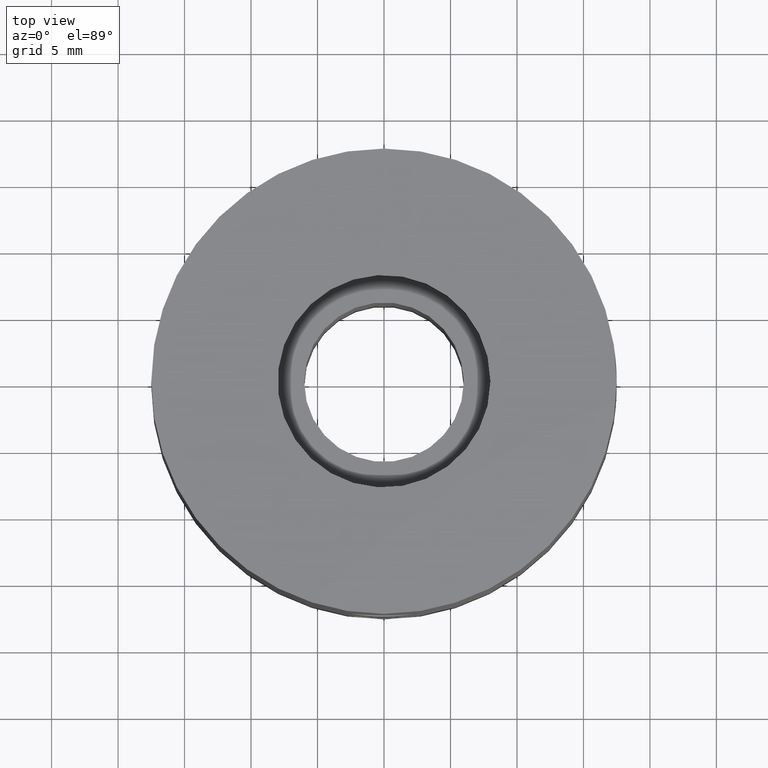
[diagram: clean part render]
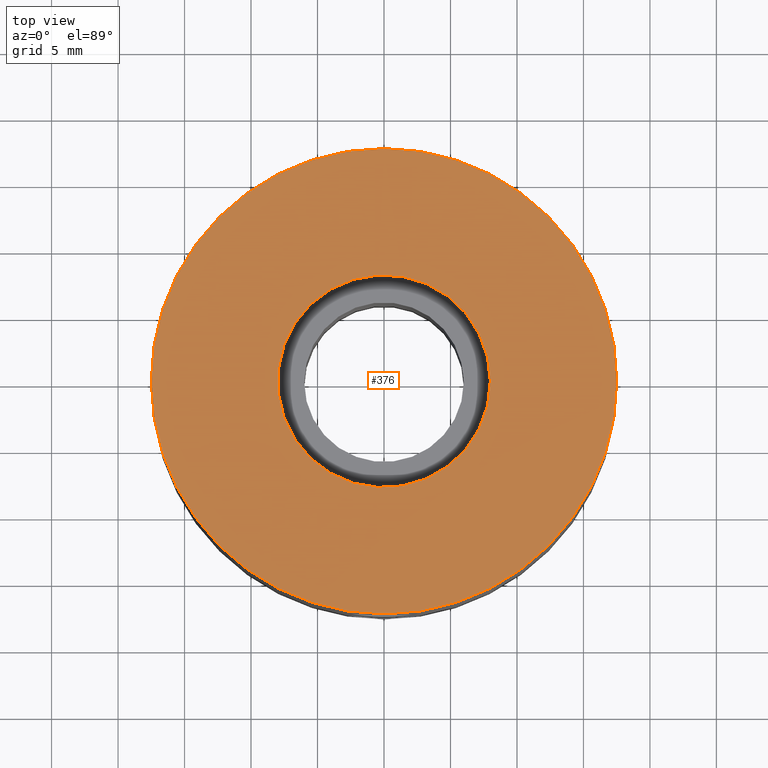
[diagram: same view with one face highlighted and labeled with its STEP entity id]
A machine part, top view. The second image highlights one B-rep face of the part: STEP entity #376.
In plain terms, the highlighted planar face has unit normal (0, 0, -1).
Its self-contained STEP definition (entity closure, byte-faithful):
#376 = ADVANCED_FACE( '', ( #489, #490 ), #491, .F. );
#489 = FACE_OUTER_BOUND( '', #661, .T. );
#490 = FACE_BOUND( '', #662, .T. );
#491 = PLANE( '', #663 );
#661 = EDGE_LOOP( '', ( #867 ) );
#662 = EDGE_LOOP( '', ( #868 ) );
#663 = AXIS2_PLACEMENT_3D( '', #869, #870, #871 );
#867 = ORIENTED_EDGE( '', *, *, #1207, .T. );
#868 = ORIENTED_EDGE( '', *, *, #1208, .F. );
#869 = CARTESIAN_POINT( '', ( 0.000000000000000, 0.000000000000000, -10.0000000000000 ) );
#870 = DIRECTION( '', ( 0.000000000000000, 0.000000000000000, -1.00000000000000 ) );
#871 = DIRECTION( '', ( 1.00000000000000, 0.000000000000000, 0.000000000000000 ) );
#1207 = EDGE_CURVE( '', #1340, #1340, #1341, .T. );
#1208 = EDGE_CURVE( '', #1342, #1342, #1343, .T. );
#1340 = VERTEX_POINT( '', #1996 );
#1341 = CIRCLE( '', #1997, 17.5000000000000 );
#1342 = VERTEX_POINT( '', #1998 );
#1343 = CIRCLE( '', #1999, 8.00000000000000 );
#1996 = CARTESIAN_POINT( '', ( 17.5000000000000, 0.000000000000000, -10.0000000000000 ) );
#1997 = AXIS2_PLACEMENT_3D( '', #2353, #2354, #2355 );
#1998 = CARTESIAN_POINT( '', ( 8.00000000000000, 0.000000000000000, -10.0000000000000 ) );
#1999 = AXIS2_PLACEMENT_3D( '', #2356, #2357, #2358 );
#2353 = CARTESIAN_POINT( '', ( 0.000000000000000, 0.000000000000000, -10.0000000000000 ) );
#2354 = DIRECTION( '', ( 0.000000000000000, -0.000000000000000, 1.00000000000000 ) );
#2355 = DIRECTION( '', ( 1.00000000000000, 0.000000000000000, 0.000000000000000 ) );
#2356 = CARTESIAN_POINT( '', ( 0.000000000000000, 0.000000000000000, -10.0000000000000 ) );
#2357 = DIRECTION( '', ( 0.000000000000000, -0.000000000000000, 1.00000000000000 ) );
#2358 = DIRECTION( '', ( 1.00000000000000, 0.000000000000000, 0.000000000000000 ) );